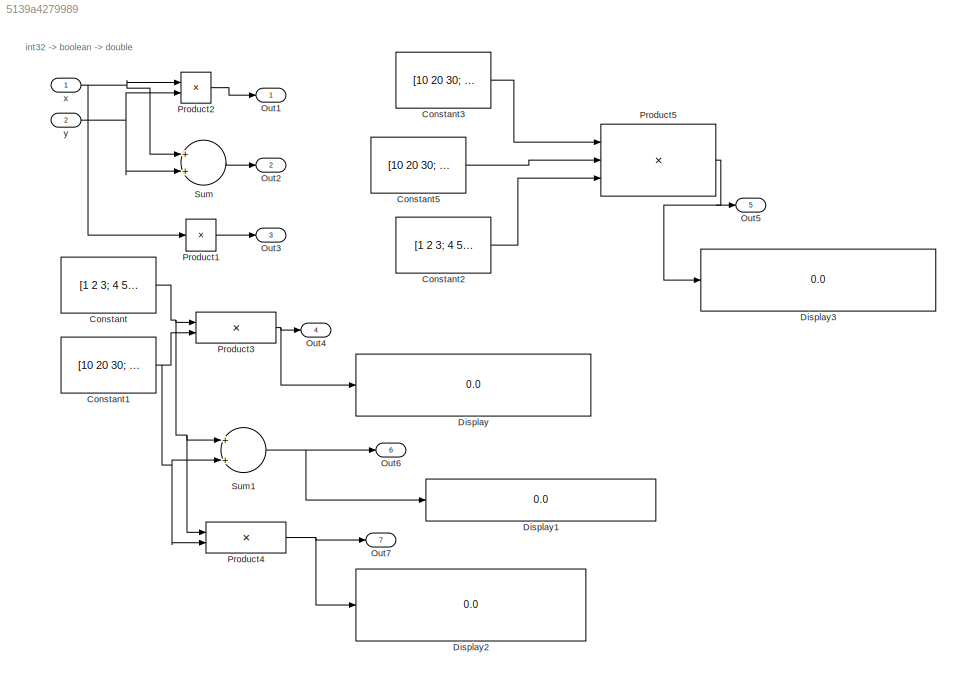
MODEL slx_5139a4279989
KIND model
CONFIG AbsTol = auto
CONFIG EnableMultiTasking = off
CONFIG FixedStep = 0.200000
CONFIG MaxStep = auto
CONFIG MinStep = auto
CONFIG RelTol = 1e-3
CONFIG SampleTimeConstraint = Unconstrained
CONFIG Solver = FixedStepDiscrete
CONFIG SolverName = FixedStepDiscrete
CONFIG StartTime = 0.0
CONFIG StopTime = 10.0
BLOCK [Constant] Constant
  Value = [1 2 3; 4 5 6; 7 8 9]
BLOCK [Constant] Constant1
  Value = [10 20 30; 40 50 60; 70 80 90]
BLOCK [Constant] Constant2
  Value = [1 2 3; 4 5 6; 7 8 9]
BLOCK [Constant] Constant3
  Value = [10 20 30; 40 50 60]
BLOCK [Constant] Constant5
  Value = [10 20 30; 40 50 60; 70 80 90]
BLOCK [Display] Display
  Decimation = 1
  Ports = [1]
BLOCK [Display] Display1
  Decimation = 1
  Ports = [1]
BLOCK [Display] Display2
  Decimation = 1
  Ports = [1]
BLOCK [Display] Display3
  Decimation = 1
  Ports = [1]
BLOCK [Outport] Out1
  IconDisplay = Port number
BLOCK [Outport] Out2
  IconDisplay = Port number
  Port = 2
BLOCK [Outport] Out3
  IconDisplay = Port number
  Port = 3
BLOCK [Outport] Out4
  IconDisplay = Port number
  Port = 4
BLOCK [Outport] Out5
  IconDisplay = Port number
  Port = 5
BLOCK [Outport] Out6
  IconDisplay = Port number
  Port = 6
BLOCK [Outport] Out7
  IconDisplay = Port number
  Port = 7
BLOCK [Product] Product1
  InputSameDT = off
  Inputs = *
  OutDataTypeStr = Inherit: Inherit via internal rule
  Ports = [1, 1]
  RndMeth = Floor
  SaturateOnIntegerOverflow = off
BLOCK [Product] Product2
  InputSameDT = off
  Inputs = **
  OutDataTypeStr = Inherit: Inherit via internal rule
  Ports = [2, 1]
  RndMeth = Floor
  SaturateOnIntegerOverflow = off
BLOCK [Product] Product3
  InputSameDT = off
  Inputs = **
  OutDataTypeStr = Inherit: Inherit via internal rule
  Ports = [2, 1]
  RndMeth = Floor
  SaturateOnIntegerOverflow = off
BLOCK [Product] Product4
  InputSameDT = off
  Inputs = **
  Multiplication = Matrix(*)
  OutDataTypeStr = Inherit: Inherit via internal rule
  Ports = [2, 1]
  RndMeth = Floor
  SaturateOnIntegerOverflow = off
BLOCK [Product] Product5
  InputSameDT = off
  Inputs = ***
  Multiplication = Matrix(*)
  OutDataTypeStr = Inherit: Inherit via internal rule
  Ports = [3, 1]
  RndMeth = Floor
  SaturateOnIntegerOverflow = off
BLOCK [Sum] Sum
  InputSameDT = off
  Inputs = 2
  OutDataTypeStr = Inherit: Inherit via internal rule
  Ports = [2, 1]
  SaturateOnIntegerOverflow = off
BLOCK [Sum] Sum1
  InputSameDT = off
  OutDataTypeStr = Inherit: Inherit via internal rule
  Ports = [2, 1]
  SaturateOnIntegerOverflow = off
BLOCK [Inport] x
  IconDisplay = Port number
  OutDataTypeStr = uint8
  PortDimensions = 3
BLOCK [Inport] y
  IconDisplay = Port number
  OutDataTypeStr = uint16
  Port = 2
ANNOTATION (root): int32 -> boolean -> double
NET Constant1:1 -> Product3:2, Product4:2, Sum1:2
LINE Constant2:1 -> Product5:3
LINE Constant3:1 -> Product5:1
LINE Constant5:1 -> Product5:2
NET Constant:1 -> Product3:1, Product4:1, Sum1:1
LINE Product1:1 -> Out3:1
LINE Product2:1 -> Out1:1
NET Product3:1 -> Display:1, Out4:1
NET Product4:1 -> Display2:1, Out7:1
NET Product5:1 -> Display3:1, Out5:1
NET Sum1:1 -> Display1:1, Out6:1
LINE Sum:1 -> Out2:1
NET x:1 -> Product1:1, Product2:1, Sum:1
NET y:1 -> Product2:2, Sum:2
note: NET lines group one-source signal fan-out (src -> all destinations, sorted); 1:1 wires keep LINE
